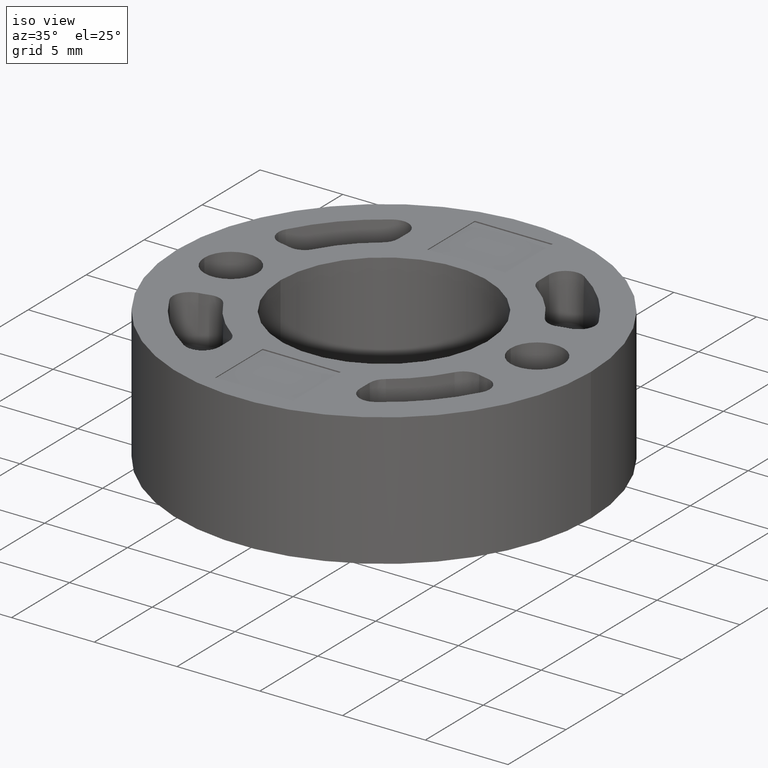
[diagram: clean part render]
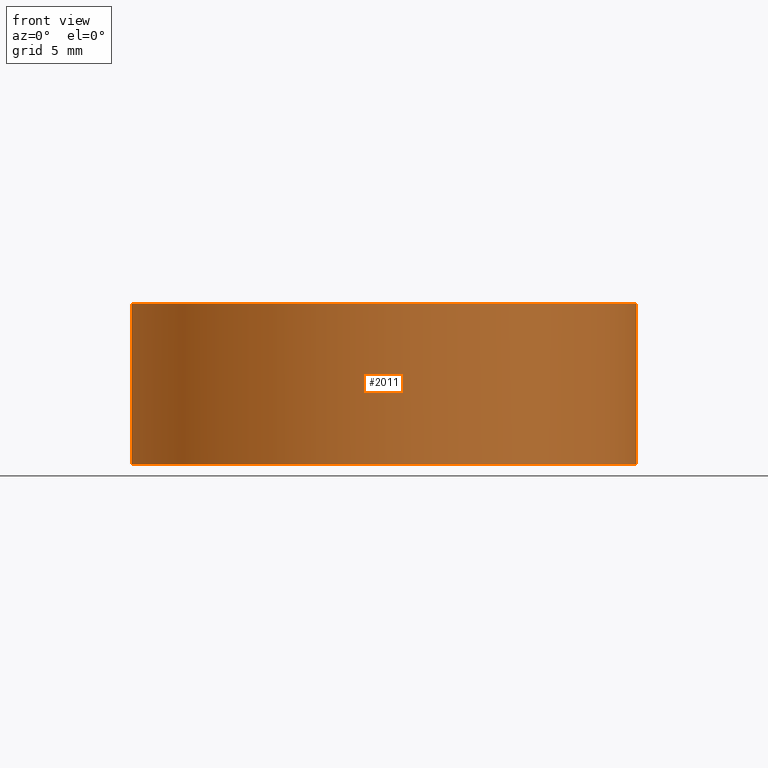
[diagram: tour spotlight — one face highlighted and labeled with its STEP entity id]
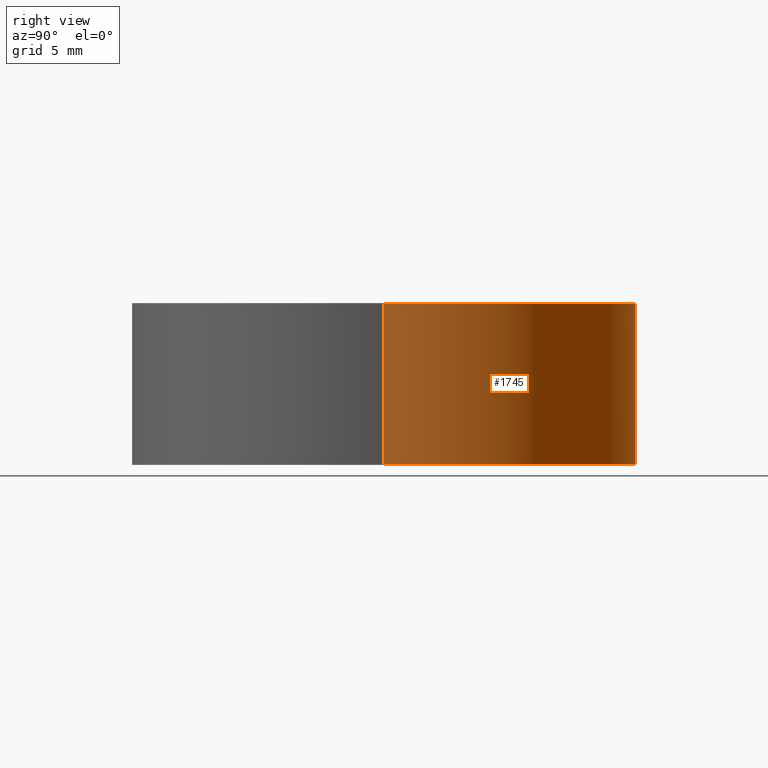
[diagram: tour spotlight — one face highlighted and labeled with its STEP entity id]
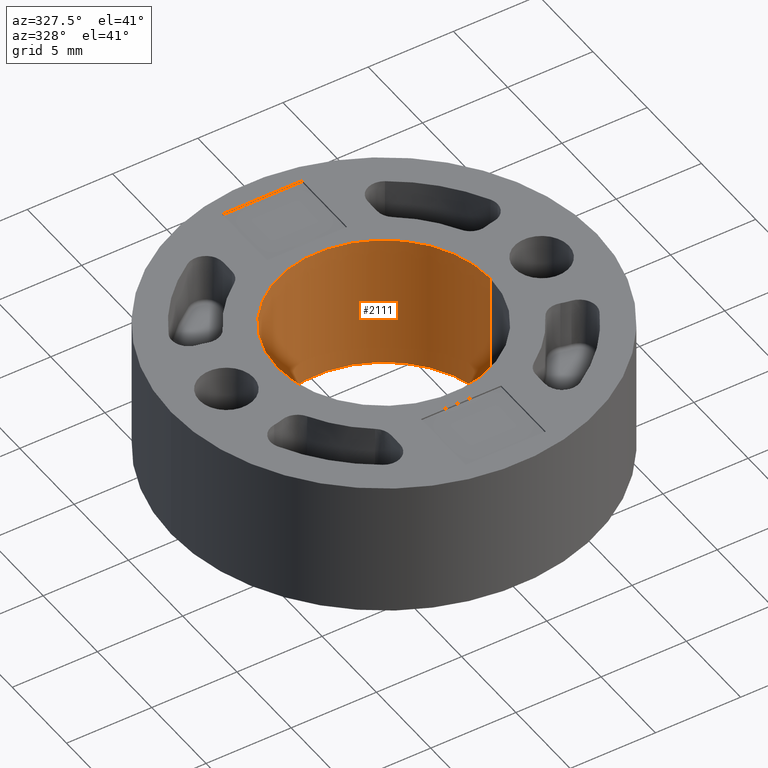
[diagram: tour spotlight — one face highlighted and labeled with its STEP entity id]
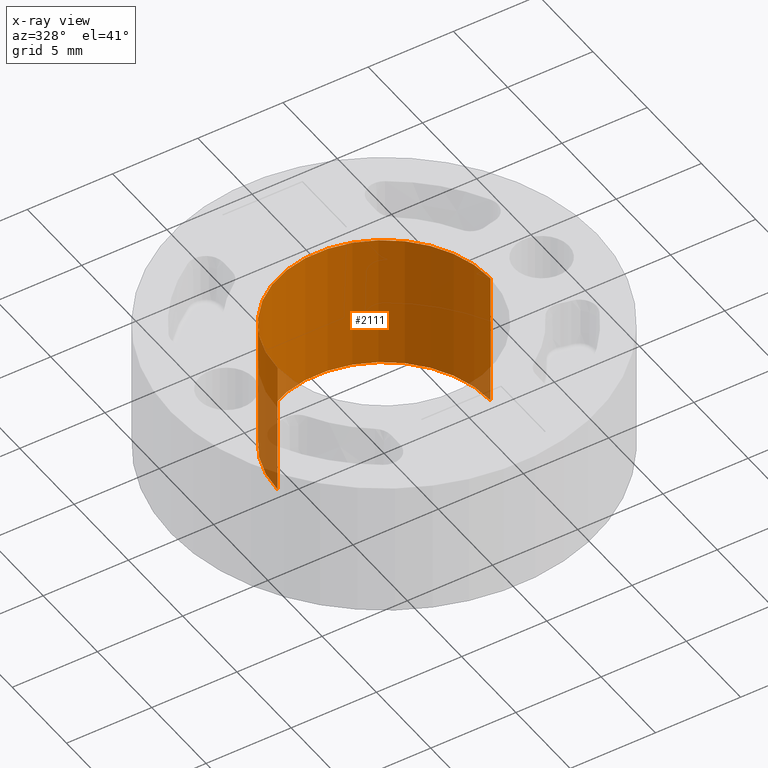
[diagram: x-ray of the same camera — body ghosted, this tour face saturated]
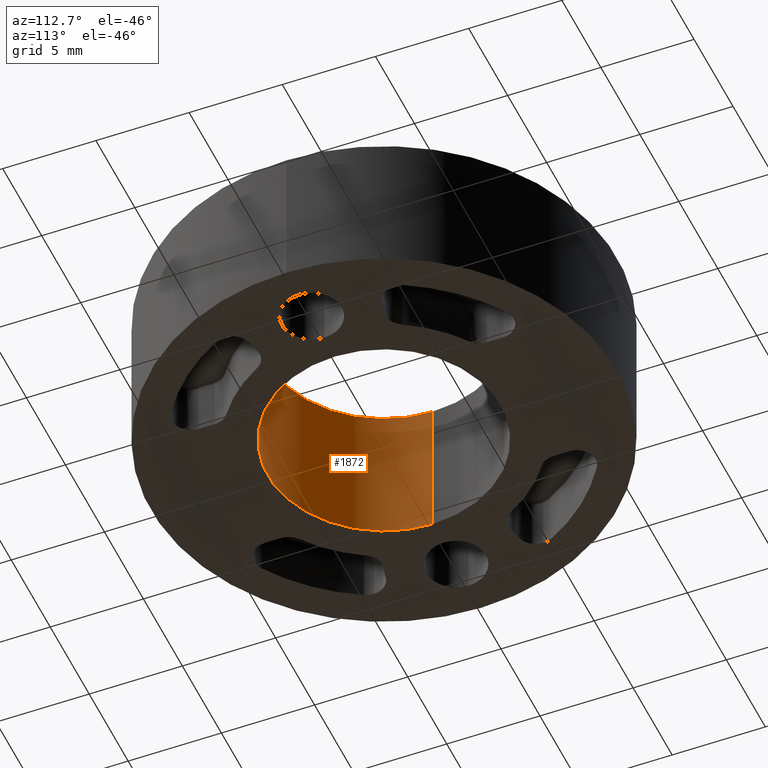
[diagram: tour spotlight — one face highlighted and labeled with its STEP entity id]
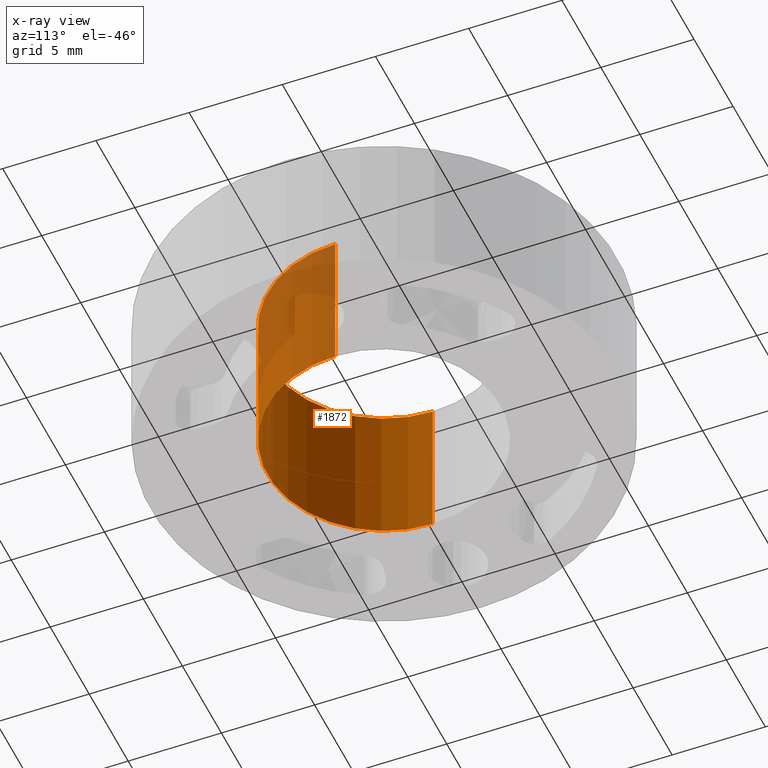
[diagram: x-ray of the same camera — body ghosted, this tour face saturated]
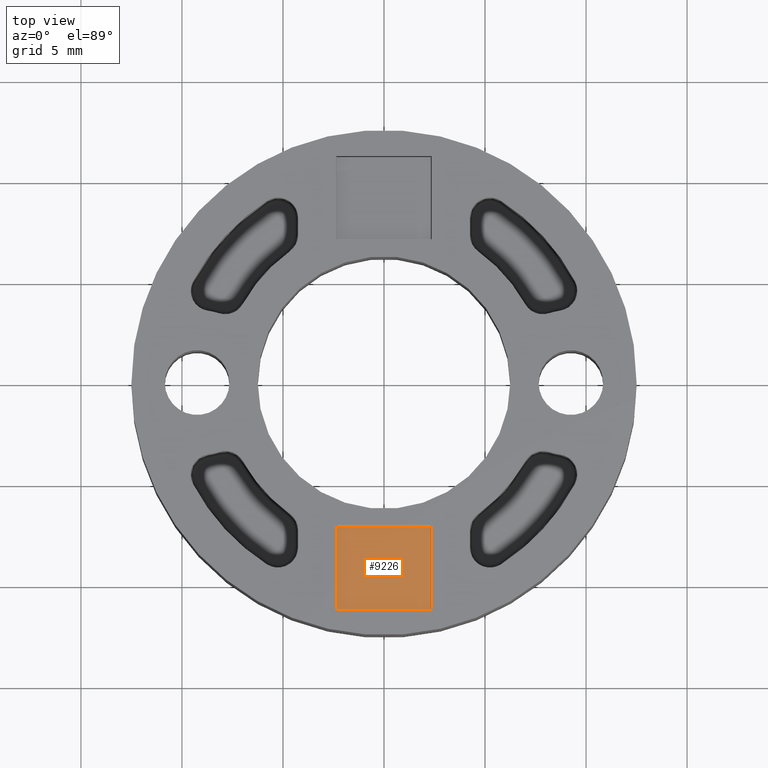
[diagram: tour spotlight — one face highlighted and labeled with its STEP entity id]
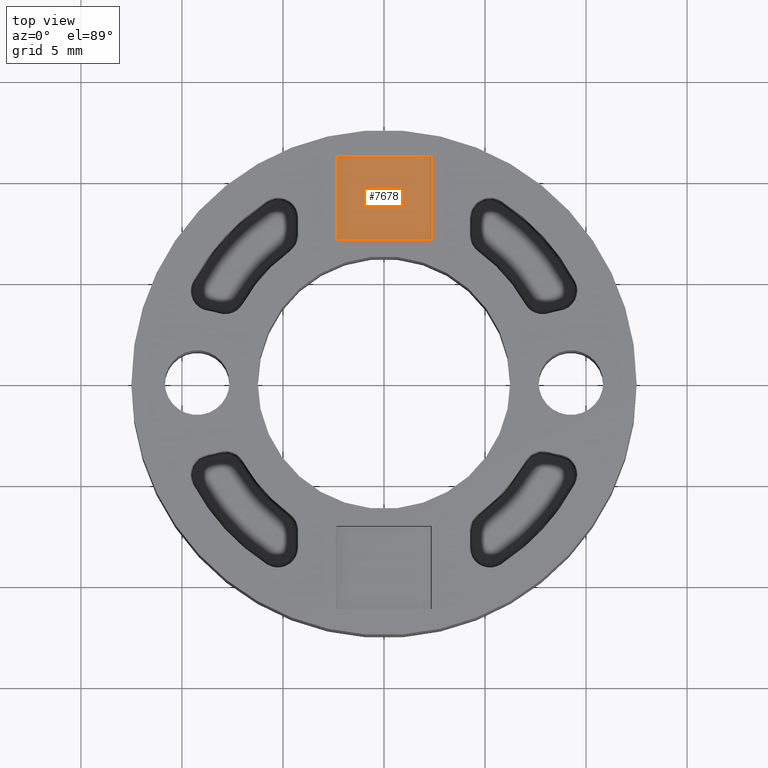
[diagram: tour spotlight — one face highlighted and labeled with its STEP entity id]
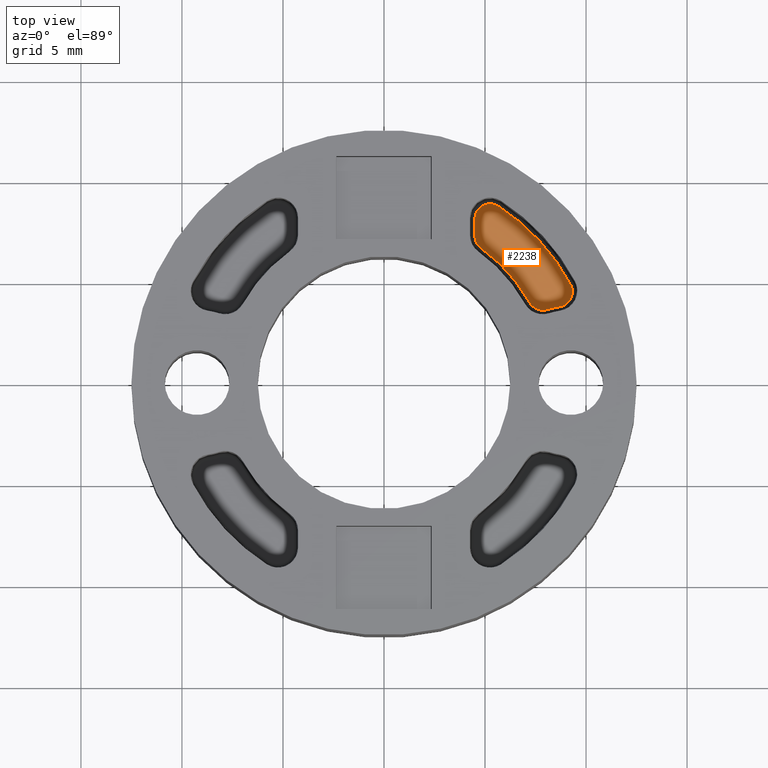
[diagram: tour spotlight — one face highlighted and labeled with its STEP entity id]
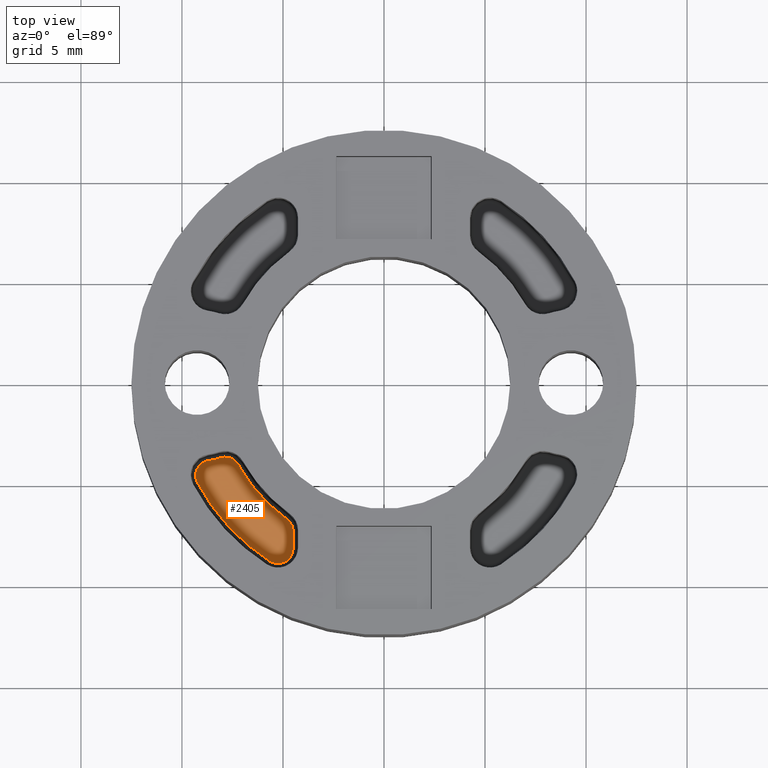
[diagram: tour spotlight — one face highlighted and labeled with its STEP entity id]
A machine part: a face-by-face anatomy tour. The part has 226 B-rep faces; the first image is the clean iso view, then the 8 largest visible faces are spotlighted one at a time (largest first), each with its STEP entity span.

Face 1 — front view, entity #2011. In plain terms, the highlighted cylindrical surface (partial cylindrical patch) has radius 12.5 mm, axis along (0, -0, -1).
Definition (entity closure, byte-faithful):
#204 = DIRECTION ( 'NONE',  ( 4.746415829343455000E-029, -1.143848312570467100E-029, -1.000000000000000000 ) ) ;
#205 = VECTOR ( 'NONE', #204, 1000.000000000000000 ) ;
#206 = CARTESIAN_POINT ( 'NONE',  ( -12.50000000000000000, 6.591949208711860600E-014, 7.999999999999998200 ) ) ;
#207 = LINE ( 'NONE', #206, #205 ) ;
#208 = CARTESIAN_POINT ( 'NONE',  ( -12.50000000000000000, 6.591949208711856900E-014, -5.933019786679327700E-028 ) ) ;
#465 = FACE_OUTER_BOUND ( 'NONE', #2039, .T. ) ;
#511 = DIRECTION ( 'NONE',  ( -1.000000000000000000, -4.930380657631323800E-030, 0.0000000000000000000 ) ) ;
#512 = DIRECTION ( 'NONE',  ( 4.746415829343455000E-029, -1.143848312570467100E-029, -1.000000000000000000 ) ) ;
#513 = CARTESIAN_POINT ( 'NONE',  ( -3.451266460341926600E-028, 6.591949208711867000E-014, 7.999999999999998200 ) ) ;
#514 = AXIS2_PLACEMENT_3D ( 'NONE', #513, #512, #511 ) ;
#515 = CYLINDRICAL_SURFACE ( 'NONE', #514, 12.50000000000000000 ) ;
#563 = DIRECTION ( 'NONE',  ( 1.000000000000000000, 4.930380657631323800E-030, 0.0000000000000000000 ) ) ;
#564 = DIRECTION ( 'NONE',  ( -4.746415829343455000E-029, 1.143848312570467100E-029, 1.000000000000000000 ) ) ;
#565 = CARTESIAN_POINT ( 'NONE',  ( -3.451266460341926600E-028, 6.591949208711867000E-014, 7.999999999999998200 ) ) ;
#566 = AXIS2_PLACEMENT_3D ( 'NONE', #565, #564, #563 ) ;
#567 = CIRCLE ( 'NONE', #566, 12.50000000000000000 ) ;
#1691 = EDGE_CURVE ( 'NONE', #1896, #1753, #9473, .T. ) ;
#1749 = VERTEX_POINT ( 'NONE', #9570 ) ;
#1750 = VERTEX_POINT ( 'NONE', #9569 ) ;
#1752 = EDGE_CURVE ( 'NONE', #1749, #1753, #9568, .T. ) ;
#1753 = VERTEX_POINT ( 'NONE', #9573 ) ;
#1896 = VERTEX_POINT ( 'NONE', #208 ) ;
#1898 = EDGE_CURVE ( 'NONE', #1750, #1896, #207, .T. ) ;
#2011 = ADVANCED_FACE ( 'NONE', ( #465 ), #515, .T. ) ;
#2012 = ORIENTED_EDGE ( 'NONE', *, *, #1752, .F. ) ;
#2034 = EDGE_CURVE ( 'NONE', #1750, #1749, #567, .T. ) ;
#2039 = EDGE_LOOP ( 'NONE', ( #2012, #2108, #2109, #2110 ) ) ;
#2108 = ORIENTED_EDGE ( 'NONE', *, *, #2034, .F. ) ;
#2109 = ORIENTED_EDGE ( 'NONE', *, *, #1898, .T. ) ;
#2110 = ORIENTED_EDGE ( 'NONE', *, *, #1691, .T. ) ;
#9460 = DIRECTION ( 'NONE',  ( 1.000000000000000000, 4.731287430827687700E-030, -4.746415829343455600E-029 ) ) ;
#9461 = DIRECTION ( 'NONE',  ( -4.746415829343455000E-029, 1.143848312570467100E-029, 1.000000000000000000 ) ) ;
#9462 = AXIS2_PLACEMENT_3D ( 'NONE', #9494, #9461, #9460 ) ;
#9473 = CIRCLE ( 'NONE', #9462, 12.50000000000000000 ) ;
#9494 = CARTESIAN_POINT ( 'NONE',  ( 0.0000000000000000000, 0.0000000000000000000, 0.0000000000000000000 ) ) ;
#9568 = LINE ( 'NONE', #9571, #9575 ) ;
#9569 = CARTESIAN_POINT ( 'NONE',  ( -12.50000000000000000, 6.591949208711856900E-014, 7.999999999999998200 ) ) ;
#9570 = CARTESIAN_POINT ( 'NONE',  ( 12.50000000000000000, 6.745025002939665400E-014, 7.999999999999998200 ) ) ;
#9571 = CARTESIAN_POINT ( 'NONE',  ( 12.50000000000000000, 6.745025002939670400E-014, 7.999999999999998200 ) ) ;
#9573 = CARTESIAN_POINT ( 'NONE',  ( 12.50000000000000000, 6.745025002939665400E-014, 5.933019786679312500E-028 ) ) ;
#9574 = DIRECTION ( 'NONE',  ( 4.746415829343455000E-029, -1.143848312570467100E-029, -1.000000000000000000 ) ) ;
#9575 = VECTOR ( 'NONE', #9574, 1000.000000000000000 ) ;

Face 2 — right view, entity #1745. In plain terms, the highlighted cylindrical surface (partial cylindrical patch) has radius 12.5 mm, axis along (0, -0, -1).
Definition (entity closure, byte-faithful):
#204 = DIRECTION ( 'NONE',  ( 4.746415829343455000E-029, -1.143848312570467100E-029, -1.000000000000000000 ) ) ;
#205 = VECTOR ( 'NONE', #204, 1000.000000000000000 ) ;
#206 = CARTESIAN_POINT ( 'NONE',  ( -12.50000000000000000, 6.591949208711860600E-014, 7.999999999999998200 ) ) ;
#207 = LINE ( 'NONE', #206, #205 ) ;
#208 = CARTESIAN_POINT ( 'NONE',  ( -12.50000000000000000, 6.591949208711856900E-014, -5.933019786679327700E-028 ) ) ;
#209 = DIRECTION ( 'NONE',  ( 1.000000000000000000, 4.731287430827687700E-030, -4.746415829343455600E-029 ) ) ;
#210 = DIRECTION ( 'NONE',  ( -4.746415829343455000E-029, 1.143848312570467100E-029, 1.000000000000000000 ) ) ;
#211 = CARTESIAN_POINT ( 'NONE',  ( 0.0000000000000000000, 0.0000000000000000000, 0.0000000000000000000 ) ) ;
#212 = AXIS2_PLACEMENT_3D ( 'NONE', #211, #210, #209 ) ;
#213 = CIRCLE ( 'NONE', #212, 12.50000000000000000 ) ;
#1745 = ADVANCED_FACE ( 'NONE', ( #9619 ), #9598, .T. ) ;
#1746 = EDGE_LOOP ( 'NONE', ( #1747, #1751, #1894, #1897 ) ) ;
#1747 = ORIENTED_EDGE ( 'NONE', *, *, #1748, .F. ) ;
#1748 = EDGE_CURVE ( 'NONE', #1749, #1750, #9606, .T. ) ;
#1749 = VERTEX_POINT ( 'NONE', #9570 ) ;
#1750 = VERTEX_POINT ( 'NONE', #9569 ) ;
#1751 = ORIENTED_EDGE ( 'NONE', *, *, #1752, .T. ) ;
#1752 = EDGE_CURVE ( 'NONE', #1749, #1753, #9568, .T. ) ;
#1753 = VERTEX_POINT ( 'NONE', #9573 ) ;
#1894 = ORIENTED_EDGE ( 'NONE', *, *, #1895, .T. ) ;
#1895 = EDGE_CURVE ( 'NONE', #1753, #1896, #213, .T. ) ;
#1896 = VERTEX_POINT ( 'NONE', #208 ) ;
#1897 = ORIENTED_EDGE ( 'NONE', *, *, #1898, .F. ) ;
#1898 = EDGE_CURVE ( 'NONE', #1750, #1896, #207, .T. ) ;
#9568 = LINE ( 'NONE', #9571, #9575 ) ;
#9569 = CARTESIAN_POINT ( 'NONE',  ( -12.50000000000000000, 6.591949208711856900E-014, 7.999999999999998200 ) ) ;
#9570 = CARTESIAN_POINT ( 'NONE',  ( 12.50000000000000000, 6.745025002939665400E-014, 7.999999999999998200 ) ) ;
#9571 = CARTESIAN_POINT ( 'NONE',  ( 12.50000000000000000, 6.745025002939670400E-014, 7.999999999999998200 ) ) ;
#9573 = CARTESIAN_POINT ( 'NONE',  ( 12.50000000000000000, 6.745025002939665400E-014, 5.933019786679312500E-028 ) ) ;
#9574 = DIRECTION ( 'NONE',  ( 4.746415829343455000E-029, -1.143848312570467100E-029, -1.000000000000000000 ) ) ;
#9575 = VECTOR ( 'NONE', #9574, 1000.000000000000000 ) ;
#9596 = AXIS2_PLACEMENT_3D ( 'NONE', #9600, #9599, #9601 ) ;
#9598 = CYLINDRICAL_SURFACE ( 'NONE', #9596, 12.50000000000000000 ) ;
#9599 = DIRECTION ( 'NONE',  ( 4.746415829343455000E-029, -1.143848312570467100E-029, -1.000000000000000000 ) ) ;
#9600 = CARTESIAN_POINT ( 'NONE',  ( -3.451266460341926600E-028, 6.591949208711867000E-014, 7.999999999999998200 ) ) ;
#9601 = DIRECTION ( 'NONE',  ( -1.000000000000000000, -4.930380657631323800E-030, 0.0000000000000000000 ) ) ;
#9602 = DIRECTION ( 'NONE',  ( 1.000000000000000000, 4.930380657631323800E-030, 0.0000000000000000000 ) ) ;
#9603 = DIRECTION ( 'NONE',  ( -4.746415829343455000E-029, 1.143848312570467100E-029, 1.000000000000000000 ) ) ;
#9604 = CARTESIAN_POINT ( 'NONE',  ( -3.451266460341926600E-028, 6.591949208711867000E-014, 7.999999999999998200 ) ) ;
#9605 = AXIS2_PLACEMENT_3D ( 'NONE', #9604, #9603, #9602 ) ;
#9606 = CIRCLE ( 'NONE', #9605, 12.50000000000000000 ) ;
#9619 = FACE_OUTER_BOUND ( 'NONE', #1746, .T. ) ;

Face 3 — auxiliary view, entity #2111. An x-ray twin of the same camera follows (body ghosted, this face saturated) — the face is partly hidden behind the body. In plain terms, the highlighted cylindrical surface (partial cylindrical patch) has radius 6.25 mm, axis along (0, -0, -1).
Definition (entity closure, byte-faithful):
#198 = CARTESIAN_POINT ( 'NONE',  ( -6.250000000000000000, 6.591949208711859400E-014, 7.999999999999998200 ) ) ;
#274 = CARTESIAN_POINT ( 'NONE',  ( 6.250000000000000000, 6.668487105825763000E-014, 7.999999999999998200 ) ) ;
#285 = CARTESIAN_POINT ( 'NONE',  ( 6.250000000000000000, 6.668487105825763000E-014, 2.966509893339651800E-028 ) ) ;
#286 = DIRECTION ( 'NONE',  ( 4.746415829343455000E-029, -1.143848312570467100E-029, -1.000000000000000000 ) ) ;
#287 = VECTOR ( 'NONE', #286, 1000.000000000000000 ) ;
#288 = CARTESIAN_POINT ( 'NONE',  ( 6.250000000000000000, 6.668487105825768100E-014, 7.999999999999998200 ) ) ;
#294 = LINE ( 'NONE', #288, #287 ) ;
#460 = DIRECTION ( 'NONE',  ( 1.000000000000000000, 3.944304526105059000E-030, 0.0000000000000000000 ) ) ;
#461 = DIRECTION ( 'NONE',  ( -4.746415829343455000E-029, 1.143848312570467100E-029, 1.000000000000000000 ) ) ;
#462 = CARTESIAN_POINT ( 'NONE',  ( -3.451266460341926600E-028, 6.591949208711867000E-014, 7.999999999999998200 ) ) ;
#463 = AXIS2_PLACEMENT_3D ( 'NONE', #462, #461, #460 ) ;
#464 = CIRCLE ( 'NONE', #463, 6.250000000000000000 ) ;
#779 = DIRECTION ( 'NONE',  ( -1.000000000000000000, -3.944304526105059000E-030, 0.0000000000000000000 ) ) ;
#780 = DIRECTION ( 'NONE',  ( 4.746415829343455000E-029, -1.143848312570467100E-029, -1.000000000000000000 ) ) ;
#781 = AXIS2_PLACEMENT_3D ( 'NONE', #785, #780, #779 ) ;
#782 = CYLINDRICAL_SURFACE ( 'NONE', #781, 6.250000000000000000 ) ;
#785 = CARTESIAN_POINT ( 'NONE',  ( -3.451266460341926600E-028, 6.591949208711867000E-014, 7.999999999999998200 ) ) ;
#800 = FACE_OUTER_BOUND ( 'NONE', #2112, .T. ) ;
#1699 = EDGE_CURVE ( 'NONE', #1910, #1742, #9456, .T. ) ;
#1742 = VERTEX_POINT ( 'NONE', #9580 ) ;
#1744 = EDGE_CURVE ( 'NONE', #1873, #1742, #9585, .T. ) ;
#1873 = VERTEX_POINT ( 'NONE', #198 ) ;
#1909 = EDGE_CURVE ( 'NONE', #1915, #1910, #294, .T. ) ;
#1910 = VERTEX_POINT ( 'NONE', #285 ) ;
#1915 = VERTEX_POINT ( 'NONE', #274 ) ;
#2010 = EDGE_CURVE ( 'NONE', #1915, #1873, #464, .T. ) ;
#2111 = ADVANCED_FACE ( 'NONE', ( #800 ), #782, .F. ) ;
#2112 = EDGE_LOOP ( 'NONE', ( #2113, #2114, #2115, #2116 ) ) ;
#2113 = ORIENTED_EDGE ( 'NONE', *, *, #1909, .F. ) ;
#2114 = ORIENTED_EDGE ( 'NONE', *, *, #2010, .T. ) ;
#2115 = ORIENTED_EDGE ( 'NONE', *, *, #1744, .T. ) ;
#2116 = ORIENTED_EDGE ( 'NONE', *, *, #1699, .F. ) ;
#9456 = CIRCLE ( 'NONE', #9497, 6.250000000000000000 ) ;
#9459 = CARTESIAN_POINT ( 'NONE',  ( 0.0000000000000000000, 0.0000000000000000000, 0.0000000000000000000 ) ) ;
#9495 = DIRECTION ( 'NONE',  ( 1.000000000000000000, 4.731287430827687700E-030, -4.746415829343455600E-029 ) ) ;
#9496 = DIRECTION ( 'NONE',  ( -4.746415829343455000E-029, 1.143848312570467100E-029, 1.000000000000000000 ) ) ;
#9497 = AXIS2_PLACEMENT_3D ( 'NONE', #9459, #9496, #9495 ) ;
#9580 = CARTESIAN_POINT ( 'NONE',  ( -6.250000000000000000, 6.591949208711859400E-014, -2.966509893339667000E-028 ) ) ;
#9582 = DIRECTION ( 'NONE',  ( 4.746415829343455000E-029, -1.143848312570467100E-029, -1.000000000000000000 ) ) ;
#9583 = VECTOR ( 'NONE', #9582, 1000.000000000000000 ) ;
#9584 = CARTESIAN_POINT ( 'NONE',  ( -6.250000000000000000, 6.591949208711864400E-014, 7.999999999999998200 ) ) ;
#9585 = LINE ( 'NONE', #9584, #9583 ) ;

Face 4 — auxiliary view, entity #1872. An x-ray twin of the same camera follows (body ghosted, this face saturated) — the face is partly hidden behind the body. In plain terms, the highlighted cylindrical surface (partial cylindrical patch) has radius 6.25 mm, axis along (0, -0, -1).
Definition (entity closure, byte-faithful):
#160 = FACE_OUTER_BOUND ( 'NONE', #1695, .T. ) ;
#194 = DIRECTION ( 'NONE',  ( -1.000000000000000000, -3.944304526105059000E-030, 0.0000000000000000000 ) ) ;
#195 = DIRECTION ( 'NONE',  ( 4.746415829343455000E-029, -1.143848312570467100E-029, -1.000000000000000000 ) ) ;
#196 = AXIS2_PLACEMENT_3D ( 'NONE', #199, #195, #194 ) ;
#197 = CYLINDRICAL_SURFACE ( 'NONE', #196, 6.250000000000000000 ) ;
#198 = CARTESIAN_POINT ( 'NONE',  ( -6.250000000000000000, 6.591949208711859400E-014, 7.999999999999998200 ) ) ;
#199 = CARTESIAN_POINT ( 'NONE',  ( -3.451266460341926600E-028, 6.591949208711867000E-014, 7.999999999999998200 ) ) ;
#274 = CARTESIAN_POINT ( 'NONE',  ( 6.250000000000000000, 6.668487105825763000E-014, 7.999999999999998200 ) ) ;
#275 = DIRECTION ( 'NONE',  ( 1.000000000000000000, 3.944304526105059000E-030, 0.0000000000000000000 ) ) ;
#276 = DIRECTION ( 'NONE',  ( -4.746415829343455000E-029, 1.143848312570467100E-029, 1.000000000000000000 ) ) ;
#277 = CARTESIAN_POINT ( 'NONE',  ( -3.451266460341926600E-028, 6.591949208711867000E-014, 7.999999999999998200 ) ) ;
#278 = AXIS2_PLACEMENT_3D ( 'NONE', #277, #276, #275 ) ;
#279 = CIRCLE ( 'NONE', #278, 6.250000000000000000 ) ;
#285 = CARTESIAN_POINT ( 'NONE',  ( 6.250000000000000000, 6.668487105825763000E-014, 2.966509893339651800E-028 ) ) ;
#286 = DIRECTION ( 'NONE',  ( 4.746415829343455000E-029, -1.143848312570467100E-029, -1.000000000000000000 ) ) ;
#287 = VECTOR ( 'NONE', #286, 1000.000000000000000 ) ;
#288 = CARTESIAN_POINT ( 'NONE',  ( 6.250000000000000000, 6.668487105825768100E-014, 7.999999999999998200 ) ) ;
#294 = LINE ( 'NONE', #288, #287 ) ;
#1695 = EDGE_LOOP ( 'NONE', ( #1913, #1908, #1740, #1743 ) ) ;
#1740 = ORIENTED_EDGE ( 'NONE', *, *, #1741, .F. ) ;
#1741 = EDGE_CURVE ( 'NONE', #1742, #1910, #9576, .T. ) ;
#1742 = VERTEX_POINT ( 'NONE', #9580 ) ;
#1743 = ORIENTED_EDGE ( 'NONE', *, *, #1744, .F. ) ;
#1744 = EDGE_CURVE ( 'NONE', #1873, #1742, #9585, .T. ) ;
#1872 = ADVANCED_FACE ( 'NONE', ( #160 ), #197, .F. ) ;
#1873 = VERTEX_POINT ( 'NONE', #198 ) ;
#1908 = ORIENTED_EDGE ( 'NONE', *, *, #1909, .T. ) ;
#1909 = EDGE_CURVE ( 'NONE', #1915, #1910, #294, .T. ) ;
#1910 = VERTEX_POINT ( 'NONE', #285 ) ;
#1913 = ORIENTED_EDGE ( 'NONE', *, *, #1914, .T. ) ;
#1914 = EDGE_CURVE ( 'NONE', #1873, #1915, #279, .T. ) ;
#1915 = VERTEX_POINT ( 'NONE', #274 ) ;
#9576 = CIRCLE ( 'NONE', #9579, 6.250000000000000000 ) ;
#9577 = DIRECTION ( 'NONE',  ( -4.746415829343455000E-029, 1.143848312570467100E-029, 1.000000000000000000 ) ) ;
#9578 = CARTESIAN_POINT ( 'NONE',  ( 0.0000000000000000000, 0.0000000000000000000, 0.0000000000000000000 ) ) ;
#9579 = AXIS2_PLACEMENT_3D ( 'NONE', #9578, #9577, #9581 ) ;
#9580 = CARTESIAN_POINT ( 'NONE',  ( -6.250000000000000000, 6.591949208711859400E-014, -2.966509893339667000E-028 ) ) ;
#9581 = DIRECTION ( 'NONE',  ( 1.000000000000000000, 4.731287430827687700E-030, -4.746415829343455600E-029 ) ) ;
#9582 = DIRECTION ( 'NONE',  ( 4.746415829343455000E-029, -1.143848312570467100E-029, -1.000000000000000000 ) ) ;
#9583 = VECTOR ( 'NONE', #9582, 1000.000000000000000 ) ;
#9584 = CARTESIAN_POINT ( 'NONE',  ( -6.250000000000000000, 6.591949208711864400E-014, 7.999999999999998200 ) ) ;
#9585 = LINE ( 'NONE', #9584, #9583 ) ;

Face 5 — top view, entity #9226. In plain terms, the highlighted planar face has unit normal (0, -0, 1).
Definition (entity closure, byte-faithful):
#6337 = CARTESIAN_POINT ( 'NONE',  ( 2.320693012959280200, -11.20385763632289600, 7.949999999999998400 ) ) ;
#6346 = CARTESIAN_POINT ( 'NONE',  ( 2.320693012959280200, -7.129306987040720000, 7.949999999999998400 ) ) ;
#6387 = DIRECTION ( 'NONE',  ( -0.0000000000000000000, 1.000000000000000000, -0.0000000000000000000 ) ) ;
#6388 = VECTOR ( 'NONE', #6387, 1000.000000000000000 ) ;
#6389 = CARTESIAN_POINT ( 'NONE',  ( 2.320693012959280200, -11.11658231168180900, 7.949999999999998400 ) ) ;
#6390 = LINE ( 'NONE', #6389, #6388 ) ;
#6641 = DIRECTION ( 'NONE',  ( -1.000000000000000000, -2.891205793294680300E-016, -0.0000000000000000000 ) ) ;
#6642 = VECTOR ( 'NONE', #6641, 1000.000000000000000 ) ;
#6643 = CARTESIAN_POINT ( 'NONE',  ( 2.233417688318192000, -7.129306987040720000, 7.949999999999998400 ) ) ;
#6644 = LINE ( 'NONE', #6643, #6642 ) ;
#6646 = CARTESIAN_POINT ( 'NONE',  ( -2.353857636322892700, -7.129306987040720900, 7.949999999999998400 ) ) ;
#6862 = CARTESIAN_POINT ( 'NONE',  ( -2.353857636322892700, -11.20385763632289600, 7.949999999999998400 ) ) ;
#6921 = DIRECTION ( 'NONE',  ( -0.0000000000000000000, -1.000000000000000000, -0.0000000000000000000 ) ) ;
#6922 = VECTOR ( 'NONE', #6921, 1000.000000000000000 ) ;
#6923 = CARTESIAN_POINT ( 'NONE',  ( -2.353857636322892700, -11.11658231168180900, 7.949999999999998400 ) ) ;
#6924 = LINE ( 'NONE', #6923, #6922 ) ;
#6931 = DIRECTION ( 'NONE',  ( 1.000000000000000000, 1.224606353822379500E-016, -0.0000000000000000000 ) ) ;
#6932 = VECTOR ( 'NONE', #6931, 1000.000000000000000 ) ;
#6933 = CARTESIAN_POINT ( 'NONE',  ( 2.233417688318192000, -11.20385763632289600, 7.949999999999998400 ) ) ;
#6934 = LINE ( 'NONE', #6933, #6932 ) ;
#8102 = DIRECTION ( 'NONE',  ( 1.000000000000000000, 0.0000000000000000000, -0.0000000000000000000 ) ) ;
#8103 = DIRECTION ( 'NONE',  ( 0.0000000000000000000, -0.0000000000000000000, 1.000000000000000000 ) ) ;
#8104 = CARTESIAN_POINT ( 'NONE',  ( 2.233417688318192000, -11.11658231168180900, 7.949999999999998400 ) ) ;
#8105 = AXIS2_PLACEMENT_3D ( 'NONE', #8104, #8103, #8102 ) ;
#8108 = PLANE ( 'NONE',  #8105 ) ;
#8123 = FACE_OUTER_BOUND ( 'NONE', #9221, .T. ) ;
#8999 = VERTEX_POINT ( 'NONE', #6346 ) ;
#9005 = VERTEX_POINT ( 'NONE', #6337 ) ;
#9027 = EDGE_CURVE ( 'NONE', #9005, #8999, #6390, .T. ) ;
#9086 = VERTEX_POINT ( 'NONE', #6646 ) ;
#9088 = EDGE_CURVE ( 'NONE', #8999, #9086, #6644, .T. ) ;
#9127 = ORIENTED_EDGE ( 'NONE', *, *, #9183, .T. ) ;
#9163 = VERTEX_POINT ( 'NONE', #6862 ) ;
#9183 = EDGE_CURVE ( 'NONE', #9163, #9005, #6934, .T. ) ;
#9186 = EDGE_CURVE ( 'NONE', #9086, #9163, #6924, .T. ) ;
#9221 = EDGE_LOOP ( 'NONE', ( #9222, #9223, #9224, #9127 ) ) ;
#9222 = ORIENTED_EDGE ( 'NONE', *, *, #9027, .T. ) ;
#9223 = ORIENTED_EDGE ( 'NONE', *, *, #9088, .T. ) ;
#9224 = ORIENTED_EDGE ( 'NONE', *, *, #9186, .T. ) ;
#9226 = ADVANCED_FACE ( 'NONE', ( #8123 ), #8108, .T. ) ;

Face 6 — top view, entity #7678. In plain terms, the highlighted planar face has unit normal (0, -0, 1).
Definition (entity closure, byte-faithful):
#3864 = DIRECTION ( 'NONE',  ( -0.0000000000000000000, -1.000000000000000000, -0.0000000000000000000 ) ) ;
#3865 = VECTOR ( 'NONE', #3864, 1000.000000000000000 ) ;
#3866 = CARTESIAN_POINT ( 'NONE',  ( -2.353857636322897100, 7.183417688318197500, 7.949999999999998400 ) ) ;
#3867 = LINE ( 'NONE', #3866, #3865 ) ;
#3869 = CARTESIAN_POINT ( 'NONE',  ( -2.353857636322897100, 7.096142363677110200, 7.949999999999998400 ) ) ;
#4985 = CARTESIAN_POINT ( 'NONE',  ( -2.353857636322897100, 11.17069301295928500, 7.949999999999998400 ) ) ;
#5147 = FACE_OUTER_BOUND ( 'NONE', #7679, .T. ) ;
#5148 = DIRECTION ( 'NONE',  ( 1.000000000000000000, 1.224606353822379500E-016, -0.0000000000000000000 ) ) ;
#5149 = VECTOR ( 'NONE', #5148, 1000.000000000000000 ) ;
#5150 = CARTESIAN_POINT ( 'NONE',  ( 2.233417688318187500, 7.096142363677111000, 7.949999999999998400 ) ) ;
#5156 = LINE ( 'NONE', #5150, #5149 ) ;
#5181 = DIRECTION ( 'NONE',  ( 1.000000000000000000, 0.0000000000000000000, -0.0000000000000000000 ) ) ;
#5182 = DIRECTION ( 'NONE',  ( 0.0000000000000000000, -0.0000000000000000000, 1.000000000000000000 ) ) ;
#5183 = CARTESIAN_POINT ( 'NONE',  ( 2.233417688318187500, 7.183417688318198400, 7.949999999999998400 ) ) ;
#5184 = AXIS2_PLACEMENT_3D ( 'NONE', #5183, #5182, #5181 ) ;
#5185 = PLANE ( 'NONE',  #5184 ) ;
#5200 = DIRECTION ( 'NONE',  ( -1.000000000000000000, -2.891205793294680300E-016, -0.0000000000000000000 ) ) ;
#5201 = VECTOR ( 'NONE', #5200, 1000.000000000000000 ) ;
#5202 = CARTESIAN_POINT ( 'NONE',  ( 2.233417688318187500, 11.17069301295928700, 7.949999999999998400 ) ) ;
#5203 = LINE ( 'NONE', #5202, #5201 ) ;
#5205 = CARTESIAN_POINT ( 'NONE',  ( 2.320693012959275800, 11.17069301295928700, 7.949999999999998400 ) ) ;
#5210 = CARTESIAN_POINT ( 'NONE',  ( 2.320693012959275800, 7.096142363677111000, 7.949999999999998400 ) ) ;
#5211 = DIRECTION ( 'NONE',  ( -0.0000000000000000000, 1.000000000000000000, -0.0000000000000000000 ) ) ;
#5212 = VECTOR ( 'NONE', #5211, 1000.000000000000000 ) ;
#5213 = CARTESIAN_POINT ( 'NONE',  ( 2.320693012959275800, 7.183417688318198400, 7.949999999999998400 ) ) ;
#5214 = LINE ( 'NONE', #5213, #5212 ) ;
#7306 = VERTEX_POINT ( 'NONE', #3869 ) ;
#7308 = EDGE_CURVE ( 'NONE', #7614, #7306, #3867, .T. ) ;
#7614 = VERTEX_POINT ( 'NONE', #4985 ) ;
#7645 = ORIENTED_EDGE ( 'NONE', *, *, #7676, .T. ) ;
#7676 = EDGE_CURVE ( 'NONE', #7306, #7692, #5156, .T. ) ;
#7678 = ADVANCED_FACE ( 'NONE', ( #5147 ), #5185, .T. ) ;
#7679 = EDGE_LOOP ( 'NONE', ( #7680, #7681, #7682, #7645 ) ) ;
#7680 = ORIENTED_EDGE ( 'NONE', *, *, #7691, .T. ) ;
#7681 = ORIENTED_EDGE ( 'NONE', *, *, #7699, .T. ) ;
#7682 = ORIENTED_EDGE ( 'NONE', *, *, #7308, .T. ) ;
#7691 = EDGE_CURVE ( 'NONE', #7692, #7696, #5214, .T. ) ;
#7692 = VERTEX_POINT ( 'NONE', #5210 ) ;
#7696 = VERTEX_POINT ( 'NONE', #5205 ) ;
#7699 = EDGE_CURVE ( 'NONE', #7696, #7614, #5203, .T. ) ;

Face 7 — top view, entity #2238. In plain terms, the highlighted planar face has unit normal (-0, -0, -1).
Definition (entity closure, byte-faithful):
#1055 = DIRECTION ( 'NONE',  ( -1.000000000000000000, 2.309591545187796500E-015, 0.0000000000000000000 ) ) ;
#1056 = DIRECTION ( 'NONE',  ( -4.746415829343455000E-029, 1.143848312570467100E-029, 1.000000000000000000 ) ) ;
#1057 = CARTESIAN_POINT ( 'NONE',  ( 5.250000000000000000, 8.156439174051378400, 4.999999999999999100 ) ) ;
#1058 = AXIS2_PLACEMENT_3D ( 'NONE', #1057, #1056, #1055 ) ;
#1059 = CIRCLE ( 'NONE', #1058, 0.7510953525922065000 ) ;
#1061 = CARTESIAN_POINT ( 'NONE',  ( 5.656520680526709200, 8.788012736662823300, 4.999999999999995600 ) ) ;
#1062 = DIRECTION ( 'NONE',  ( -1.000000000000000000, -4.717573126350273800E-030, 0.0000000000000000000 ) ) ;
#1063 = DIRECTION ( 'NONE',  ( -4.746415829343455000E-029, 1.143848312570467100E-029, 1.000000000000000000 ) ) ;
#1064 = CARTESIAN_POINT ( 'NONE',  ( -1.972152263052529500E-028, 6.591949208711867000E-014, 4.999999999999995600 ) ) ;
#1065 = AXIS2_PLACEMENT_3D ( 'NONE', #1064, #1063, #1062 ) ;
#1066 = CIRCLE ( 'NONE', #1065, 10.45109535259220800 ) ;
#1113 = FACE_OUTER_BOUND ( 'NONE', #2239, .T. ) ;
#1145 = CARTESIAN_POINT ( 'NONE',  ( 4.498904647407792700, 7.310095758606793800, 5.000000000000002700 ) ) ;
#1146 = CARTESIAN_POINT ( 'NONE',  ( 4.498904647407793600, 8.156439174051378400, 4.999999999999999100 ) ) ;
#1147 = DIRECTION ( 'NONE',  ( 1.024834271951764700E-015, -1.000000000000000000, -1.188221738489149000E-029 ) ) ;
#1148 = VECTOR ( 'NONE', #1147, 1000.000000000000000 ) ;
#1149 = CARTESIAN_POINT ( 'NONE',  ( 4.498904647407792700, 7.310095758606793800, 5.000000000000002700 ) ) ;
#1150 = DIRECTION ( 'NONE',  ( -1.000000000000000000, -4.731287430827687700E-030, 4.746415829343455000E-029 ) ) ;
#1151 = DIRECTION ( 'NONE',  ( -4.746415829343455000E-029, -1.143848312570467100E-029, -1.000000000000000000 ) ) ;
#1152 = CARTESIAN_POINT ( 'NONE',  ( -1.972152263052529500E-028, 6.591949208711867000E-014, 4.999999999999995600 ) ) ;
#1153 = AXIS2_PLACEMENT_3D ( 'NONE', #1152, #1151, #1150 ) ;
#1154 = LINE ( 'NONE', #1149, #1148 ) ;
#1155 = PLANE ( 'NONE',  #1153 ) ;
#1158 = AXIS2_PLACEMENT_3D ( 'NONE', #1383, #1611, #1610 ) ;
#1163 = CIRCLE ( 'NONE', #1158, 0.7510953525922091600 ) ;
#1383 = CARTESIAN_POINT ( 'NONE',  ( 8.567162162162162500, 4.549036435028520800, 4.999999999999992000 ) ) ;
#1610 = DIRECTION ( 'NONE',  ( -1.000000000000000000, 2.309591545187788200E-015, 0.0000000000000000000 ) ) ;
#1611 = DIRECTION ( 'NONE',  ( -4.746415829343455000E-029, 1.143848312570467100E-029, 1.000000000000000000 ) ) ;
#2215 = ORIENTED_EDGE ( 'NONE', *, *, #2216, .T. ) ;
#2216 = EDGE_CURVE ( 'NONE', #2471, #2217, #1066, .T. ) ;
#2217 = VERTEX_POINT ( 'NONE', #1061 ) ;
#2218 = ORIENTED_EDGE ( 'NONE', *, *, #2219, .T. ) ;
#2219 = EDGE_CURVE ( 'NONE', #2217, #2242, #1059, .T. ) ;
#2238 = ADVANCED_FACE ( 'NONE', ( #1113 ), #1155, .F. ) ;
#2239 = EDGE_LOOP ( 'NONE', ( #2240, #2457, #2460, #2463, #2466, #2469, #2215, #2218 ) ) ;
#2240 = ORIENTED_EDGE ( 'NONE', *, *, #2241, .T. ) ;
#2241 = EDGE_CURVE ( 'NONE', #2242, #2243, #1154, .T. ) ;
#2242 = VERTEX_POINT ( 'NONE', #1146 ) ;
#2243 = VERTEX_POINT ( 'NONE', #1145 ) ;
#2457 = ORIENTED_EDGE ( 'NONE', *, *, #2458, .T. ) ;
#2458 = EDGE_CURVE ( 'NONE', #2243, #2459, #2717, .T. ) ;
#2459 = VERTEX_POINT ( 'NONE', #2712 ) ;
#2460 = ORIENTED_EDGE ( 'NONE', *, *, #2461, .T. ) ;
#2461 = EDGE_CURVE ( 'NONE', #2459, #2462, #2711, .T. ) ;
#2462 = VERTEX_POINT ( 'NONE', #2706 ) ;
#2463 = ORIENTED_EDGE ( 'NONE', *, *, #2464, .T. ) ;
#2464 = EDGE_CURVE ( 'NONE', #2462, #2465, #2705, .T. ) ;
#2465 = VERTEX_POINT ( 'NONE', #2700 ) ;
#2466 = ORIENTED_EDGE ( 'NONE', *, *, #2467, .T. ) ;
#2467 = EDGE_CURVE ( 'NONE', #2465, #2468, #2699, .T. ) ;
#2468 = VERTEX_POINT ( 'NONE', #2694 ) ;
#2469 = ORIENTED_EDGE ( 'NONE', *, *, #2470, .T. ) ;
#2470 = EDGE_CURVE ( 'NONE', #2468, #2471, #1163, .T. ) ;
#2471 = VERTEX_POINT ( 'NONE', #2749 ) ;
#2694 = CARTESIAN_POINT ( 'NONE',  ( 8.678657015765219600, 3.806262494784485200, 4.999999999999999100 ) ) ;
#2695 = DIRECTION ( 'NONE',  ( -1.000000000000000000, -3.202457003547684000E-030, 0.0000000000000000000 ) ) ;
#2696 = DIRECTION ( 'NONE',  ( 4.746415829343455000E-029, -1.143848312570467100E-029, -1.000000000000000000 ) ) ;
#2697 = CARTESIAN_POINT ( 'NONE',  ( 9.250000000000000000, 6.678685382510707300E-014, 4.999999999999995600 ) ) ;
#2698 = AXIS2_PLACEMENT_3D ( 'NONE', #2697, #2696, #2695 ) ;
#2699 = CIRCLE ( 'NONE', #2698, 3.848904647407790600 ) ;
#2700 = CARTESIAN_POINT ( 'NONE',  ( 8.086622211598744100, 3.668871639386134500, 4.999999999999999100 ) ) ;
#2701 = DIRECTION ( 'NONE',  ( -1.000000000000000000, 1.154795772593892900E-015, 0.0000000000000000000 ) ) ;
#2702 = DIRECTION ( 'NONE',  ( -4.746415829343455000E-029, 1.143848312570467100E-029, 1.000000000000000000 ) ) ;
#2703 = CARTESIAN_POINT ( 'NONE',  ( 7.859594594594595300, 4.384834410627097300, 4.999999999999999100 ) ) ;
#2704 = AXIS2_PLACEMENT_3D ( 'NONE', #2703, #2702, #2701 ) ;
#2705 = CIRCLE ( 'NONE', #2704, 0.7510953525922100500 ) ;
#2706 = CARTESIAN_POINT ( 'NONE',  ( 7.203671819788056900, 4.018897883103939300, 4.999999999999999100 ) ) ;
#2707 = DIRECTION ( 'NONE',  ( -1.000000000000000000, -4.482759410227293400E-030, 0.0000000000000000000 ) ) ;
#2708 = DIRECTION ( 'NONE',  ( 4.746415829343455000E-029, -1.143848312570467100E-029, -1.000000000000000000 ) ) ;
#2709 = CARTESIAN_POINT ( 'NONE',  ( -1.972152263052529500E-028, 6.591949208711867000E-014, 4.999999999999995600 ) ) ;
#2710 = AXIS2_PLACEMENT_3D ( 'NONE', #2709, #2708, #2707 ) ;
#2711 = CIRCLE ( 'NONE', #2710, 8.248904647407790900 ) ;
#2712 = CARTESIAN_POINT ( 'NONE',  ( 4.811861044321211100, 6.700031430685286600, 4.999999999999999100 ) ) ;
#2713 = DIRECTION ( 'NONE',  ( -1.000000000000000000, 0.0000000000000000000, 0.0000000000000000000 ) ) ;
#2714 = DIRECTION ( 'NONE',  ( -4.746415829343455000E-029, 1.143848312570467100E-029, 1.000000000000000000 ) ) ;
#2715 = CARTESIAN_POINT ( 'NONE',  ( 5.250000000000001800, 7.310095758606792900, 5.000000000000002700 ) ) ;
#2716 = AXIS2_PLACEMENT_3D ( 'NONE', #2715, #2714, #2713 ) ;
#2717 = CIRCLE ( 'NONE', #2716, 0.7510953525922082800 ) ;
#2749 = CARTESIAN_POINT ( 'NONE',  ( 9.230539036894512600, 4.901279746896826800, 4.999999999999999100 ) ) ;

Face 8 — top view, entity #2405. In plain terms, the highlighted planar face has unit normal (-0, -0, -1).
Definition (entity closure, byte-faithful):
#54 = CARTESIAN_POINT ( 'NONE',  ( -9.318257514754373400, -4.549036435028513700, 5.000000000000006200 ) ) ;
#65 = DIRECTION ( 'NONE',  ( -1.000000000000000000, -2.309591545187788200E-015, 0.0000000000000000000 ) ) ;
#66 = DIRECTION ( 'NONE',  ( -4.746415829343455000E-029, 1.143848312570467100E-029, 1.000000000000000000 ) ) ;
#67 = CARTESIAN_POINT ( 'NONE',  ( -8.567162162162164300, -4.549036435028517300, 5.000000000000006200 ) ) ;
#68 = AXIS2_PLACEMENT_3D ( 'NONE', #67, #66, #65 ) ;
#69 = CIRCLE ( 'NONE', #68, 0.7510953525922091600 ) ;
#1553 = DIRECTION ( 'NONE',  ( -1.000000000000000000, -4.482759410227293400E-030, 0.0000000000000000000 ) ) ;
#1554 = DIRECTION ( 'NONE',  ( 4.746415829343455000E-029, -1.143848312570467100E-029, -1.000000000000000000 ) ) ;
#1555 = CARTESIAN_POINT ( 'NONE',  ( -1.972152263052529500E-028, 6.591949208711867000E-014, 4.999999999999995600 ) ) ;
#1556 = AXIS2_PLACEMENT_3D ( 'NONE', #1555, #1554, #1553 ) ;
#1557 = CIRCLE ( 'NONE', #1556, 8.248904647407790900 ) ;
#1586 = CIRCLE ( 'NONE', #1636, 0.7510953525922091600 ) ;
#1587 = CARTESIAN_POINT ( 'NONE',  ( -8.567162162162164300, -4.549036435028517300, 5.000000000000006200 ) ) ;
#1604 = DIRECTION ( 'NONE',  ( -1.000000000000000000, 0.0000000000000000000, 0.0000000000000000000 ) ) ;
#1605 = DIRECTION ( 'NONE',  ( -4.746415829343455000E-029, 1.143848312570467100E-029, 1.000000000000000000 ) ) ;
#1606 = CARTESIAN_POINT ( 'NONE',  ( -7.859594594594603300, -4.384834410627089300, 4.999999999999999100 ) ) ;
#1607 = AXIS2_PLACEMENT_3D ( 'NONE', #1606, #1605, #1604 ) ;
#1608 = CIRCLE ( 'NONE', #1607, 0.7510953525922108300 ) ;
#1627 = DIRECTION ( 'NONE',  ( -1.000000000000000000, -4.717573126350271700E-030, 0.0000000000000000000 ) ) ;
#1628 = DIRECTION ( 'NONE',  ( -4.746415829343455000E-029, 1.143848312570467100E-029, 1.000000000000000000 ) ) ;
#1629 = CARTESIAN_POINT ( 'NONE',  ( -1.972152263052529500E-028, 6.591949208711867000E-014, 4.999999999999995600 ) ) ;
#1630 = AXIS2_PLACEMENT_3D ( 'NONE', #1629, #1628, #1627 ) ;
#1631 = CIRCLE ( 'NONE', #1630, 10.45109535259221200 ) ;
#1633 = CARTESIAN_POINT ( 'NONE',  ( -9.230539036894521500, -4.901279746896824100, 4.999999999999999100 ) ) ;
#1634 = DIRECTION ( 'NONE',  ( -1.000000000000000000, 0.0000000000000000000, 0.0000000000000000000 ) ) ;
#1635 = DIRECTION ( 'NONE',  ( -4.746415829343455000E-029, 1.143848312570467100E-029, 1.000000000000000000 ) ) ;
#1636 = AXIS2_PLACEMENT_3D ( 'NONE', #1587, #1635, #1634 ) ;
#1796 = VERTEX_POINT ( 'NONE', #8879 ) ;
#1829 = VERTEX_POINT ( 'NONE', #54 ) ;
#1846 = EDGE_CURVE ( 'NONE', #1796, #1829, #69, .T. ) ;
#2198 = ORIENTED_EDGE ( 'NONE', *, *, #1846, .T. ) ;
#2199 = ORIENTED_EDGE ( 'NONE', *, *, #2381, .T. ) ;
#2377 = EDGE_CURVE ( 'NONE', #2401, #2403, #1557, .T. ) ;
#2378 = ORIENTED_EDGE ( 'NONE', *, *, #2379, .T. ) ;
#2379 = EDGE_CURVE ( 'NONE', #2403, #2409, #1608, .T. ) ;
#2381 = EDGE_CURVE ( 'NONE', #1829, #2382, #1586, .T. ) ;
#2382 = VERTEX_POINT ( 'NONE', #1633 ) ;
#2383 = ORIENTED_EDGE ( 'NONE', *, *, #2384, .T. ) ;
#2384 = EDGE_CURVE ( 'NONE', #2382, #2440, #1631, .T. ) ;
#2399 = ORIENTED_EDGE ( 'NONE', *, *, #2400, .T. ) ;
#2400 = EDGE_CURVE ( 'NONE', #2446, #2401, #2508, .T. ) ;
#2401 = VERTEX_POINT ( 'NONE', #2503 ) ;
#2402 = ORIENTED_EDGE ( 'NONE', *, *, #2377, .T. ) ;
#2403 = VERTEX_POINT ( 'NONE', #2502 ) ;
#2405 = ADVANCED_FACE ( 'NONE', ( #2501 ), #2551, .F. ) ;
#2406 = EDGE_LOOP ( 'NONE', ( #2407, #2198, #2199, #2383, #2441, #2444, #2399, #2402, #2378 ) ) ;
#2407 = ORIENTED_EDGE ( 'NONE', *, *, #2408, .T. ) ;
#2408 = EDGE_CURVE ( 'NONE', #2409, #1796, #2545, .T. ) ;
#2409 = VERTEX_POINT ( 'NONE', #2541 ) ;
#2440 = VERTEX_POINT ( 'NONE', #2688 ) ;
#2441 = ORIENTED_EDGE ( 'NONE', *, *, #2442, .T. ) ;
#2442 = EDGE_CURVE ( 'NONE', #2440, #2443, #2683, .T. ) ;
#2443 = VERTEX_POINT ( 'NONE', #2678 ) ;
#2444 = ORIENTED_EDGE ( 'NONE', *, *, #2445, .T. ) ;
#2445 = EDGE_CURVE ( 'NONE', #2443, #2446, #2677, .T. ) ;
#2446 = VERTEX_POINT ( 'NONE', #2673 ) ;
#2501 = FACE_OUTER_BOUND ( 'NONE', #2406, .T. ) ;
#2502 = CARTESIAN_POINT ( 'NONE',  ( -7.203671819788052500, -4.018897883103938400, 4.999999999999999100 ) ) ;
#2503 = CARTESIAN_POINT ( 'NONE',  ( -4.811861044321208400, -6.700031430685216400, 4.999999999999999100 ) ) ;
#2504 = DIRECTION ( 'NONE',  ( -1.000000000000000000, 2.309591545187790900E-015, 0.0000000000000000000 ) ) ;
#2505 = DIRECTION ( 'NONE',  ( -4.746415829343455000E-029, 1.143848312570467100E-029, 1.000000000000000000 ) ) ;
#2506 = CARTESIAN_POINT ( 'NONE',  ( -5.249999999999998200, -7.310095758606719200, 4.999999999999999100 ) ) ;
#2507 = AXIS2_PLACEMENT_3D ( 'NONE', #2506, #2505, #2504 ) ;
#2508 = CIRCLE ( 'NONE', #2507, 0.7510953525922082800 ) ;
#2541 = CARTESIAN_POINT ( 'NONE',  ( -8.086622211598744100, -3.668871639386132300, 4.999999999999999100 ) ) ;
#2542 = DIRECTION ( 'NONE',  ( -1.000000000000000000, -3.202457003547684000E-030, 0.0000000000000000000 ) ) ;
#2543 = DIRECTION ( 'NONE',  ( 4.746415829343455000E-029, -1.143848312570467100E-029, -1.000000000000000000 ) ) ;
#2544 = AXIS2_PLACEMENT_3D ( 'NONE', #2550, #2543, #2542 ) ;
#2545 = CIRCLE ( 'NONE', #2544, 3.848904647407790600 ) ;
#2546 = DIRECTION ( 'NONE',  ( -1.000000000000000000, -4.731287430827687700E-030, 4.746415829343455000E-029 ) ) ;
#2547 = DIRECTION ( 'NONE',  ( -4.746415829343455000E-029, -1.143848312570467100E-029, -1.000000000000000000 ) ) ;
#2548 = CARTESIAN_POINT ( 'NONE',  ( -1.972152263052529500E-028, 6.591949208711867000E-014, 4.999999999999995600 ) ) ;
#2549 = AXIS2_PLACEMENT_3D ( 'NONE', #2548, #2547, #2546 ) ;
#2550 = CARTESIAN_POINT ( 'NONE',  ( -9.250000000000000000, 6.418476861114186200E-014, 4.999999999999995600 ) ) ;
#2551 = PLANE ( 'NONE',  #2549 ) ;
#2673 = CARTESIAN_POINT ( 'NONE',  ( -4.498904647407789200, -7.310095758606722800, 4.999999999999999100 ) ) ;
#2674 = DIRECTION ( 'NONE',  ( -1.024834271951761500E-015, 1.000000000000000000, 1.188221738489149000E-029 ) ) ;
#2675 = VECTOR ( 'NONE', #2674, 1000.000000000000000 ) ;
#2676 = CARTESIAN_POINT ( 'NONE',  ( -4.498904647407789200, -7.310095758606722800, 4.999999999999999100 ) ) ;
#2677 = LINE ( 'NONE', #2676, #2675 ) ;
#2678 = CARTESIAN_POINT ( 'NONE',  ( -4.498904647407788300, -8.156439174051403300, 4.999999999999999100 ) ) ;
#2679 = DIRECTION ( 'NONE',  ( -1.000000000000000000, 0.0000000000000000000, 0.0000000000000000000 ) ) ;
#2680 = DIRECTION ( 'NONE',  ( -4.746415829343455000E-029, 1.143848312570467100E-029, 1.000000000000000000 ) ) ;
#2681 = CARTESIAN_POINT ( 'NONE',  ( -5.249999999999995600, -8.156439174051403300, 4.999999999999999100 ) ) ;
#2682 = AXIS2_PLACEMENT_3D ( 'NONE', #2681, #2680, #2679 ) ;
#2683 = CIRCLE ( 'NONE', #2682, 0.7510953525922065000 ) ;
#2688 = CARTESIAN_POINT ( 'NONE',  ( -5.656520680526707400, -8.788012736662832200, 4.999999999999999100 ) ) ;
#8879 = CARTESIAN_POINT ( 'NONE',  ( -8.678657015765226700, -3.806262494784484800, 4.999999999999999100 ) ) ;